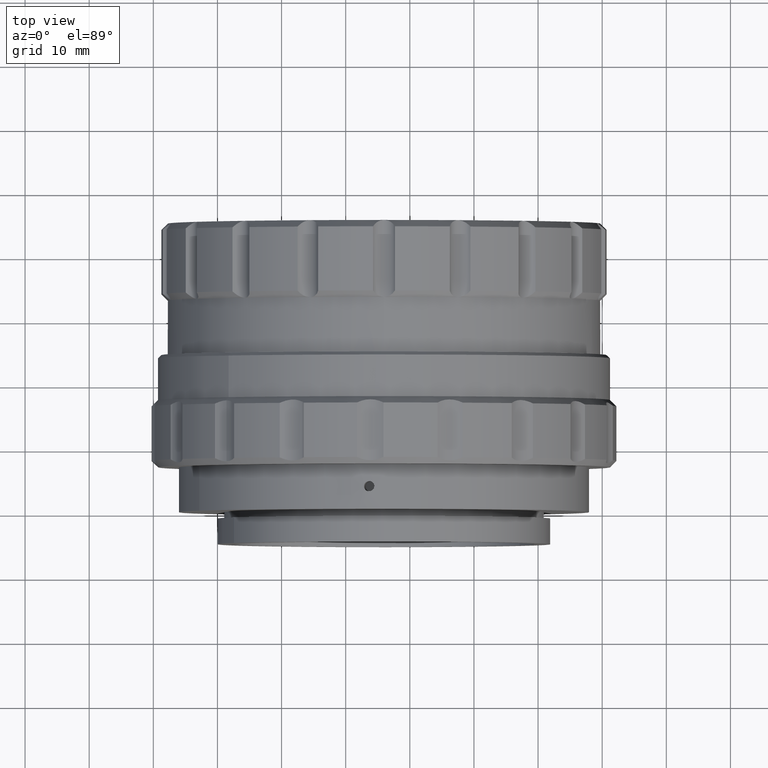
[diagram: clean part render]
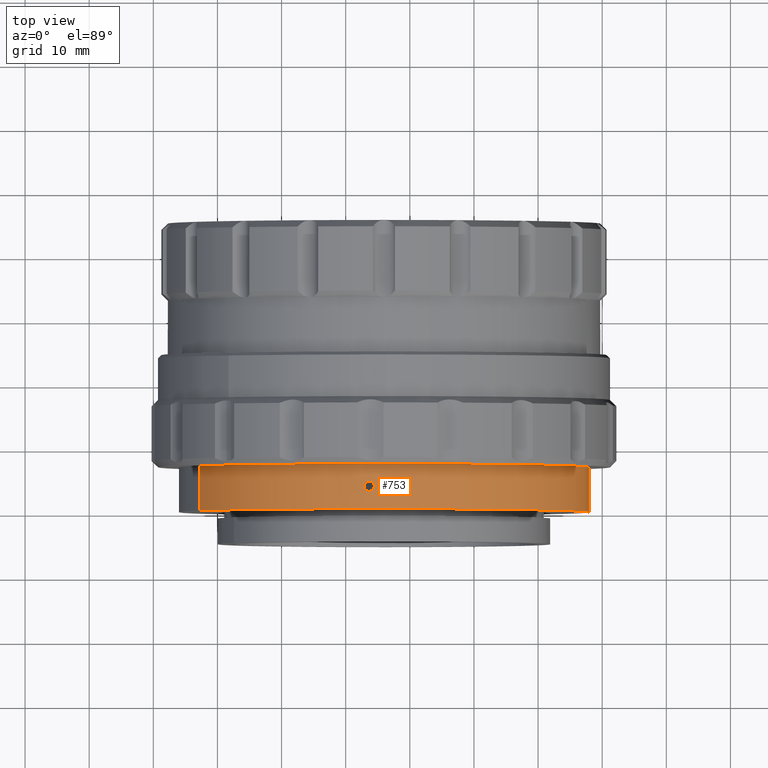
[diagram: same view with one face highlighted and labeled with its STEP entity id]
A machine part, top view. The second image highlights one B-rep face of the part: STEP entity #753.
In plain terms, the highlighted cylindrical surface (partial cylindrical patch) has radius 32 mm, axis along (0, -1, 0).
Its self-contained STEP definition (entity closure, byte-faithful):
#136 = DIRECTION ( 'NONE',  ( -0.8999629717010937391, 0.000000000000000000, 0.4359663399471757628 ) ) ;
#152 = CARTESIAN_POINT ( 'NONE',  ( 4.432062873486239063, -26.33960947374458073, 76.86627138710075258 ) ) ;
#196 = CARTESIAN_POINT ( 'NONE',  ( 2.856972262002995144, -26.54875568700542132, 76.75135920840489234 ) ) ;
#248 = VERTEX_POINT ( 'NONE', #843 ) ;
#258 = CARTESIAN_POINT ( 'NONE',  ( 4.143973334109735340, -25.90826955167461065, 76.85115447153627599 ) ) ;
#401 = CARTESIAN_POINT ( 'NONE',  ( 4.452770607498477418, -26.54875568700499855, 76.86723690482328664 ) ) ;
#509 = CARTESIAN_POINT ( 'NONE',  ( 2.877694676700560450, -26.33929627623896152, 76.75340438551972966 ) ) ;
#753 = ADVANCED_FACE ( 'NONE', ( #7339, #2551 ), #5838, .T. ) ;
#756 = CIRCLE ( 'NONE', #6736, 32.00000000000000000 ) ;
#825 = CARTESIAN_POINT ( 'NONE',  ( 34.77051610874783449, -30.04875568700542132, 30.95238356702144245 ) ) ;
#843 = CARTESIAN_POINT ( 'NONE',  ( 35.11028814435680090, -26.54875568700542132, 31.67671428919214449 ) ) ;
#878 = EDGE_CURVE ( 'NONE', #6071, #1580, #10091, .T. ) ;
#999 = EDGE_CURVE ( 'NONE', #1580, #6071, #4370, .T. ) ;
#1070 = EDGE_CURVE ( 'NONE', #4621, #1986, #9993, .T. ) ;
#1102 = CARTESIAN_POINT ( 'NONE',  ( 3.760041598849627853, -27.34866699654411448, 76.82696058245375070 ) ) ;
#1171 = CARTESIAN_POINT ( 'NONE',  ( 2.856972262002995144, -26.54875568700542132, 76.75135920840489234 ) ) ;
#1173 = CARTESIAN_POINT ( 'NONE',  ( 2.957677566750337217, -26.14551687608529207, 76.76107279318314625 ) ) ;
#1182 = DIRECTION ( 'NONE',  ( 0.000000000000000000, -1.000000000000000000, 0.000000000000000000 ) ) ;
#1574 = CARTESIAN_POINT ( 'NONE',  ( 35.04357401175776943, -26.05666965661855983, 31.53051105732113157 ) ) ;
#1580 = VERTEX_POINT ( 'NONE', #1171 ) ;
#1608 = CARTESIAN_POINT ( 'NONE',  ( 34.86125075211430158, -27.32800761947338941, 31.14091873688035150 ) ) ;
#1702 = CARTESIAN_POINT ( 'NONE',  ( 5.971701014312827738, -55.31082790531268500, 44.90330644533106863 ) ) ;
#1727 = CARTESIAN_POINT ( 'NONE',  ( 34.86153536482277104, -25.74875568700497652, 31.14027412799718064 ) ) ;
#1762 = ORIENTED_EDGE ( 'NONE', *, *, #10365, .T. ) ;
#1850 = CARTESIAN_POINT ( 'NONE',  ( 34.77051610874783449, -27.34875568700541493, 30.95238356702144245 ) ) ;
#1968 = CARTESIAN_POINT ( 'NONE',  ( 3.016873993091710116, -26.05676715743544491, 76.76667803480195573 ) ) ;
#1986 = VERTEX_POINT ( 'NONE', #9134 ) ;
#2063 = CARTESIAN_POINT ( 'NONE',  ( 2.943488411475483346, -26.96725383763800821, 76.76004481459303008 ) ) ;
#2410 = CARTESIAN_POINT ( 'NONE',  ( 35.07458930291920041, -26.96704045702763253, 31.59752943281876014 ) ) ;
#2551 = FACE_BOUND ( 'NONE', #10414, .T. ) ;
#2577 = ORIENTED_EDGE ( 'NONE', *, *, #7476, .T. ) ;
#2657 = DIRECTION ( 'NONE',  ( 0.000000000000000000, -1.000000000000000000, 0.000000000000000000 ) ) ;
#2672 = CARTESIAN_POINT ( 'NONE',  ( 34.77051610874783449, -55.31082790531268500, 30.95238356702144245 ) ) ;
#2704 = CARTESIAN_POINT ( 'NONE',  ( -22.82711408012217191, -30.04875568700542132, 58.85422932364069482 ) ) ;
#2716 = CARTESIAN_POINT ( 'NONE',  ( 3.164319692191739364, -27.18863659794232746, 76.78000754325059063 ) ) ;
#2739 = CARTESIAN_POINT ( 'NONE',  ( 5.971701014312827738, -23.04875568700542132, 44.90330644533106863 ) ) ;
#2835 = EDGE_CURVE ( 'NONE', #3308, #6884, #3312, .T. ) ;
#3289 = CARTESIAN_POINT ( 'NONE',  ( 35.11028814435680090, -26.54875568700542132, 31.67671428919214449 ) ) ;
#3308 = VERTEX_POINT ( 'NONE', #6025 ) ;
#3312 = LINE ( 'NONE', #6681, #7838 ) ;
#3316 = B_SPLINE_CURVE_WITH_KNOTS ( 'NONE', 3,
 ( #1850, #6490, #1608, #3462, #3415, #2410, #9742, #6674 ),
 .UNSPECIFIED., .F., .F.,
 ( 4, 2, 2, 4 ),
 ( 0.003752273706207642258, 0.004064695349454913904, 0.004377116992702185551, 0.005001960279196721905 ),
 .UNSPECIFIED. ) ;
#3318 = AXIS2_PLACEMENT_3D ( 'NONE', #1702, #2657, #136 ) ;
#3341 = CARTESIAN_POINT ( 'NONE',  ( 35.11028814435680090, -26.44301156818668019, 31.67671428919215160 ) ) ;
#3366 = EDGE_CURVE ( 'NONE', #7120, #6594, #9914, .T. ) ;
#3415 = CARTESIAN_POINT ( 'NONE',  ( 34.98155387005609640, -27.18839156585361749, 31.39649744210697691 ) ) ;
#3432 = CARTESIAN_POINT ( 'NONE',  ( 4.452770607498477418, -26.54875568700499855, 76.86723690482328664 ) ) ;
#3454 = CARTESIAN_POINT ( 'NONE',  ( -22.82711408012217191, -55.31082790531268500, 58.85422932364069482 ) ) ;
#3462 = CARTESIAN_POINT ( 'NONE',  ( 34.94411192870971661, -27.24768473680518355, 31.31622415007879212 ) ) ;
#3466 = B_SPLINE_CURVE_WITH_KNOTS ( 'NONE', 3,
 ( #3289, #3341, #5866, #9713, #1574, #6659, #1727, #7415 ),
 .UNSPECIFIED., .F., .F.,
 ( 4, 2, 2, 4 ),
 ( 0.000000000000000000, 0.0003127287607545383764, 0.0006254575215090767528, 0.001250915043018174322 ),
 .UNSPECIFIED. ) ;
#3583 = CARTESIAN_POINT ( 'NONE',  ( 3.863747201482859772, -27.32774389983591945, 76.83394827573016528 ) ) ;
#3606 = DIRECTION ( 'NONE',  ( -0.8999629717010937391, 0.000000000000000000, 0.4359663399471757628 ) ) ;
#3643 = ORIENTED_EDGE ( 'NONE', *, *, #6819, .T. ) ;
#4370 = B_SPLINE_CURVE_WITH_KNOTS ( 'NONE', 3,
 ( #196, #6006, #509, #1173, #1968, #9097, #5850, #5265, #9254, #10104, #258, #6646, #5212, #152, #5053, #3432 ),
 .UNSPECIFIED., .F., .F.,
 ( 4, 2, 2, 2, 2, 2, 2, 4 ),
 ( 0.000000000000000000, 0.0003126578824579739750, 0.0006253157649159479499, 0.001250631529831898719, 0.001563289412289876109, 0.001875947294747853065, 0.002188605177205830456, 0.002501263059663807846 ),
 .UNSPECIFIED. ) ;
#4621 = VERTEX_POINT ( 'NONE', #5326 ) ;
#5053 = CARTESIAN_POINT ( 'NONE',  ( 4.452770607494199950, -26.44432867690561295, 76.86723690482308768 ) ) ;
#5157 = DIRECTION ( 'NONE',  ( 0.000000000000000000, -1.000000000000000000, 0.000000000000000000 ) ) ;
#5172 = ORIENTED_EDGE ( 'NONE', *, *, #999, .T. ) ;
#5212 = CARTESIAN_POINT ( 'NONE',  ( 4.351824697523140273, -26.14568443097378392, 76.86230540011356993 ) ) ;
#5250 = CARTESIAN_POINT ( 'NONE',  ( 2.856972262002995144, -26.76014815957010740, 76.75135920840484971 ) ) ;
#5265 = CARTESIAN_POINT ( 'NONE',  ( 3.757952123775026632, -25.74871870115592998, 76.82681200697246027 ) ) ;
#5326 = CARTESIAN_POINT ( 'NONE',  ( 34.77051610874783449, -23.04875568700542132, 30.95238356702144245 ) ) ;
#5838 = CYLINDRICAL_SURFACE ( 'NONE', #3318, 32.00000000000000000 ) ;
#5850 = CARTESIAN_POINT ( 'NONE',  ( 3.445687532392641472, -25.74882980983321801, 76.80413436353997270 ) ) ;
#5866 = CARTESIAN_POINT ( 'NONE',  ( 35.10169400014682850, -26.33924778492783858, 31.65773646681237352 ) ) ;
#5990 = CARTESIAN_POINT ( 'NONE',  ( 4.366312317271231258, -26.96643104202556529, 76.86335121548968630 ) ) ;
#6002 = ORIENTED_EDGE ( 'NONE', *, *, #2835, .F. ) ;
#6006 = CARTESIAN_POINT ( 'NONE',  ( 2.856972262002995144, -26.44303553452414235, 76.75135920840487813 ) ) ;
#6025 = CARTESIAN_POINT ( 'NONE',  ( 34.77051610874783449, -27.34875568700541493, 30.95238356702144245 ) ) ;
#6039 = CARTESIAN_POINT ( 'NONE',  ( 3.252630905881678913, -27.24791235431111147, 76.78772385470202266 ) ) ;
#6071 = VERTEX_POINT ( 'NONE', #8618 ) ;
#6197 = CARTESIAN_POINT ( 'NONE',  ( 4.452770607494467292, -26.75756245987901494, 76.86723690482308768 ) ) ;
#6453 = CIRCLE ( 'NONE', #6616, 32.00000000000000000 ) ;
#6490 = CARTESIAN_POINT ( 'NONE',  ( 34.81649357331796324, -27.34875568700541848, 31.04729459994850060 ) ) ;
#6594 = VERTEX_POINT ( 'NONE', #2704 ) ;
#6616 = AXIS2_PLACEMENT_3D ( 'NONE', #7224, #10465, #8127 ) ;
#6646 = CARTESIAN_POINT ( 'NONE',  ( 4.293174200295334586, -26.05759991135134612, 76.85934076927543401 ) ) ;
#6659 = CARTESIAN_POINT ( 'NONE',  ( 34.95050502505323919, -25.83526655444421394, 31.32940713880584482 ) ) ;
#6674 = CARTESIAN_POINT ( 'NONE',  ( 35.11028814435680090, -26.54875568700542132, 31.67671428919214449 ) ) ;
#6677 = VECTOR ( 'NONE', #8425, 1000.000000000000000 ) ;
#6681 = CARTESIAN_POINT ( 'NONE',  ( 34.77051610874783449, -55.31082790531268500, 30.95238356702144245 ) ) ;
#6736 = AXIS2_PLACEMENT_3D ( 'NONE', #2739, #1182, #3606 ) ;
#6819 = EDGE_CURVE ( 'NONE', #248, #1986, #3466, .T. ) ;
#6884 = VERTEX_POINT ( 'NONE', #825 ) ;
#6893 = CARTESIAN_POINT ( 'NONE',  ( 3.446048142306229689, -27.32816269603308967, 76.80362765624816745 ) ) ;
#7084 = VECTOR ( 'NONE', #5157, 1000.000000000000000 ) ;
#7120 = VERTEX_POINT ( 'NONE', #8153 ) ;
#7224 = CARTESIAN_POINT ( 'NONE',  ( 5.971701014312827738, -30.04875568700542132, 44.90330644533106863 ) ) ;
#7339 = FACE_OUTER_BOUND ( 'NONE', #8597, .T. ) ;
#7415 = CARTESIAN_POINT ( 'NONE',  ( 34.77051610874752896, -25.74875568699485484, 30.95238356702021676 ) ) ;
#7476 = EDGE_CURVE ( 'NONE', #3308, #248, #3316, .T. ) ;
#7664 = ORIENTED_EDGE ( 'NONE', *, *, #878, .T. ) ;
#7699 = CARTESIAN_POINT ( 'NONE',  ( 2.856972262002995144, -26.54875568700542132, 76.75135920840489234 ) ) ;
#7838 = VECTOR ( 'NONE', #8233, 1000.000000000000000 ) ;
#8127 = DIRECTION ( 'NONE',  ( -0.8999629717010937391, 0.000000000000000000, 0.4359663399471757628 ) ) ;
#8153 = CARTESIAN_POINT ( 'NONE',  ( -22.82711408012217191, -23.04875568700542132, 58.85422932364069482 ) ) ;
#8233 = DIRECTION ( 'NONE',  ( 0.000000000000000000, -1.000000000000000000, 0.000000000000000000 ) ) ;
#8425 = DIRECTION ( 'NONE',  ( 0.000000000000000000, -1.000000000000000000, 0.000000000000000000 ) ) ;
#8440 = CARTESIAN_POINT ( 'NONE',  ( 4.056827590909227510, -27.24740003860332749, 76.84610871361365980 ) ) ;
#8484 = EDGE_CURVE ( 'NONE', #6884, #6594, #6453, .T. ) ;
#8597 = EDGE_LOOP ( 'NONE', ( #10056, #1762, #10155, #9839, #6002, #2577, #3643 ) ) ;
#8618 = CARTESIAN_POINT ( 'NONE',  ( 4.452770607498477418, -26.54875568700499855, 76.86723690482328664 ) ) ;
#9097 = CARTESIAN_POINT ( 'NONE',  ( 3.237482641333000011, -25.83537266003978417, 76.78662272493114926 ) ) ;
#9134 = CARTESIAN_POINT ( 'NONE',  ( 34.77051610874752896, -25.74875568699485484, 30.95238356702021676 ) ) ;
#9254 = CARTESIAN_POINT ( 'NONE',  ( 3.862585534508299556, -25.76944281768781764, 76.83387197580606198 ) ) ;
#9400 = CARTESIAN_POINT ( 'NONE',  ( 3.549589826066359866, -27.34884381569411360, 76.81168321740160820 ) ) ;
#9713 = CARTESIAN_POINT ( 'NONE',  ( 35.06832913180067379, -26.14543358344511148, 31.58460352037666041 ) ) ;
#9742 = CARTESIAN_POINT ( 'NONE',  ( 35.11028814435681511, -26.76003623111256147, 31.67671428919214449 ) ) ;
#9839 = ORIENTED_EDGE ( 'NONE', *, *, #8484, .F. ) ;
#9914 = LINE ( 'NONE', #3454, #6677 ) ;
#9993 = LINE ( 'NONE', #2672, #7084 ) ;
#10037 = CARTESIAN_POINT ( 'NONE',  ( 4.145504449589878959, -27.18784803513221249, 76.85123970793472381 ) ) ;
#10056 = ORIENTED_EDGE ( 'NONE', *, *, #1070, .F. ) ;
#10091 = B_SPLINE_CURVE_WITH_KNOTS ( 'NONE', 3,
 ( #401, #6197, #5990, #10037, #8440, #3583, #1102, #9400, #6893, #6039, #2716, #2063, #5250, #7699 ),
 .UNSPECIFIED., .F., .F.,
 ( 4, 2, 2, 2, 2, 2, 4 ),
 ( 0.002501263059663807846, 0.003126437364547021616, 0.003439024516988632187, 0.003751611669430242324, 0.004064198821871853329, 0.004376785974313463466, 0.005001960279196682874 ),
 .UNSPECIFIED. ) ;
#10104 = CARTESIAN_POINT ( 'NONE',  ( 4.055935916744679126, -25.84958324083566694, 76.84605565847876107 ) ) ;
#10155 = ORIENTED_EDGE ( 'NONE', *, *, #3366, .T. ) ;
#10365 = EDGE_CURVE ( 'NONE', #4621, #7120, #756, .T. ) ;
#10414 = EDGE_LOOP ( 'NONE', ( #5172, #7664 ) ) ;
#10465 = DIRECTION ( 'NONE',  ( 0.000000000000000000, -1.000000000000000000, 0.000000000000000000 ) ) ;